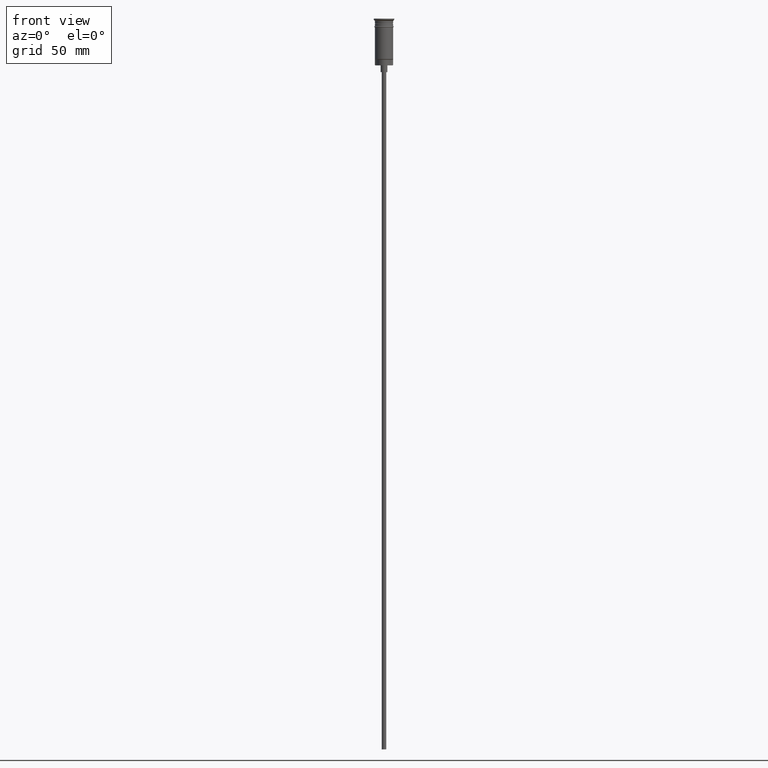
[diagram: clean part render]
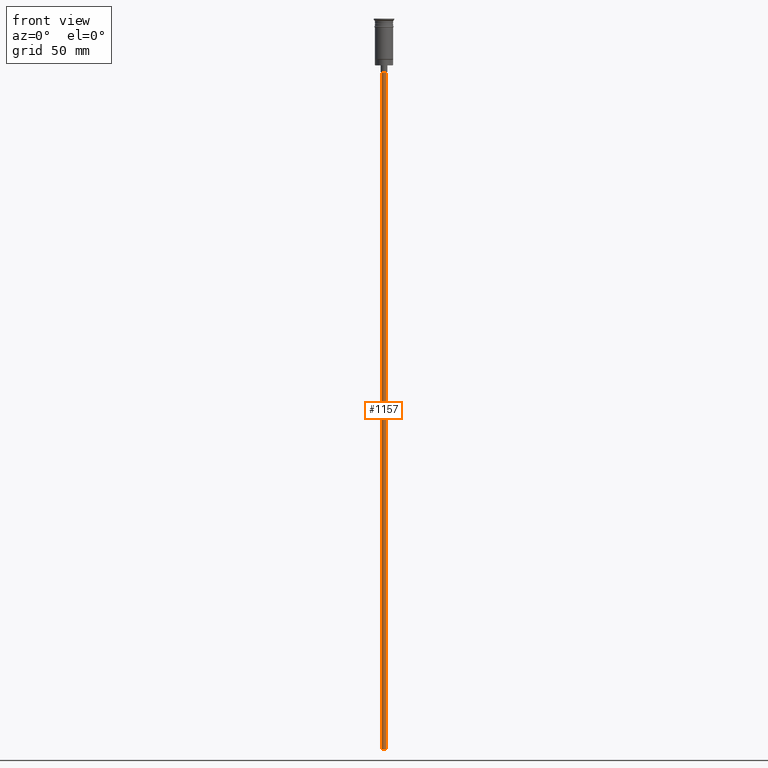
[diagram: same view with one face highlighted and labeled with its STEP entity id]
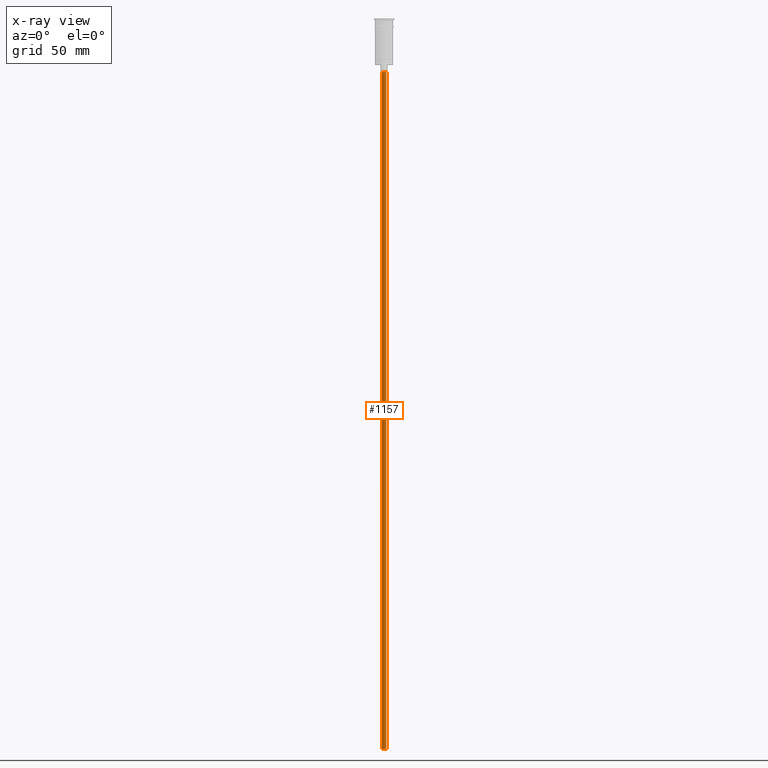
[diagram: x-ray of the same camera — body ghosted, the highlighted face saturated]
A machine part, front view. The second image highlights one B-rep face of the part: STEP entity #1157.
The next image is the same camera in x-ray: the body ghosted, the highlighted face saturated — about 0% of this face is hidden behind the body in this view.
In plain terms, the highlighted cylindrical surface (edge-blend (fillet) strip) has radius 1 mm, axis along (-0, -0, 1).
Its self-contained STEP definition (entity closure, byte-faithful):
#11 = CARTESIAN_POINT ( 'NONE',  ( 0.000000000000000000, 0.000000000000000000, -23.49999999999999645 ) ) ;
#44 = ORIENTED_EDGE ( 'NONE', *, *, #986, .F. ) ;
#54 = ORIENTED_EDGE ( 'NONE', *, *, #398, .T. ) ;
#92 = VECTOR ( 'NONE', #208, 1000.000000000000000 ) ;
#158 = DIRECTION ( 'NONE',  ( -1.000000000000000000, 0.000000000000000000, 0.000000000000000000 ) ) ;
#198 = AXIS2_PLACEMENT_3D ( 'NONE', #288, #1032, #535 ) ;
#208 = DIRECTION ( 'NONE',  ( -0.000000000000000000, -0.000000000000000000, 1.000000000000000000 ) ) ;
#231 = CYLINDRICAL_SURFACE ( 'NONE', #1472, 0.9999999999999997780 ) ;
#245 = CIRCLE ( 'NONE', #1450, 0.9999999999999997780 ) ;
#276 = EDGE_LOOP ( 'NONE', ( #1367, #44, #54, #1023 ) ) ;
#283 = VERTEX_POINT ( 'NONE', #1268 ) ;
#288 = CARTESIAN_POINT ( 'NONE',  ( 0.000000000000000000, 0.000000000000000000, -320.5000000000000000 ) ) ;
#379 = CARTESIAN_POINT ( 'NONE',  ( -0.9999999999999997780, 1.224646799147352961E-16, -320.5000000000000000 ) ) ;
#398 = EDGE_CURVE ( 'NONE', #1399, #960, #1412, .T. ) ;
#399 = DIRECTION ( 'NONE',  ( 0.000000000000000000, 0.000000000000000000, -1.000000000000000000 ) ) ;
#425 = CARTESIAN_POINT ( 'NONE',  ( 0.9999999999999997780, 0.000000000000000000, -320.5000000000000000 ) ) ;
#464 = EDGE_CURVE ( 'NONE', #1316, #283, #764, .T. ) ;
#535 = DIRECTION ( 'NONE',  ( -1.000000000000000000, 0.000000000000000000, 0.000000000000000000 ) ) ;
#669 = CARTESIAN_POINT ( 'NONE',  ( 0.9999999999999997780, 0.000000000000000000, -23.49999999999999645 ) ) ;
#684 = FACE_OUTER_BOUND ( 'NONE', #276, .T. ) ;
#764 = LINE ( 'NONE', #379, #1418 ) ;
#838 = DIRECTION ( 'NONE',  ( 1.000000000000000000, 0.000000000000000000, 0.000000000000000000 ) ) ;
#868 = CARTESIAN_POINT ( 'NONE',  ( -0.9999999999999997780, 1.224646799147352961E-16, -320.5000000000000000 ) ) ;
#960 = VERTEX_POINT ( 'NONE', #669 ) ;
#986 = EDGE_CURVE ( 'NONE', #1399, #1316, #1373, .T. ) ;
#1023 = ORIENTED_EDGE ( 'NONE', *, *, #1267, .T. ) ;
#1032 = DIRECTION ( 'NONE',  ( 0.000000000000000000, 0.000000000000000000, -1.000000000000000000 ) ) ;
#1047 = CARTESIAN_POINT ( 'NONE',  ( 0.9999999999999997780, 0.000000000000000000, -320.5000000000000000 ) ) ;
#1157 = ADVANCED_FACE ( 'NONE', ( #684 ), #231, .T. ) ;
#1182 = CARTESIAN_POINT ( 'NONE',  ( 0.000000000000000000, 0.000000000000000000, -320.5000000000000000 ) ) ;
#1260 = DIRECTION ( 'NONE',  ( -0.000000000000000000, -0.000000000000000000, 1.000000000000000000 ) ) ;
#1267 = EDGE_CURVE ( 'NONE', #960, #283, #245, .T. ) ;
#1268 = CARTESIAN_POINT ( 'NONE',  ( -0.9999999999999997780, 1.224646799147352961E-16, -23.49999999999999645 ) ) ;
#1316 = VERTEX_POINT ( 'NONE', #868 ) ;
#1332 = DIRECTION ( 'NONE',  ( -0.000000000000000000, -0.000000000000000000, 1.000000000000000000 ) ) ;
#1367 = ORIENTED_EDGE ( 'NONE', *, *, #464, .F. ) ;
#1373 = CIRCLE ( 'NONE', #198, 0.9999999999999997780 ) ;
#1399 = VERTEX_POINT ( 'NONE', #1047 ) ;
#1412 = LINE ( 'NONE', #425, #92 ) ;
#1418 = VECTOR ( 'NONE', #1260, 1000.000000000000000 ) ;
#1450 = AXIS2_PLACEMENT_3D ( 'NONE', #11, #399, #158 ) ;
#1472 = AXIS2_PLACEMENT_3D ( 'NONE', #1182, #1332, #838 ) ;